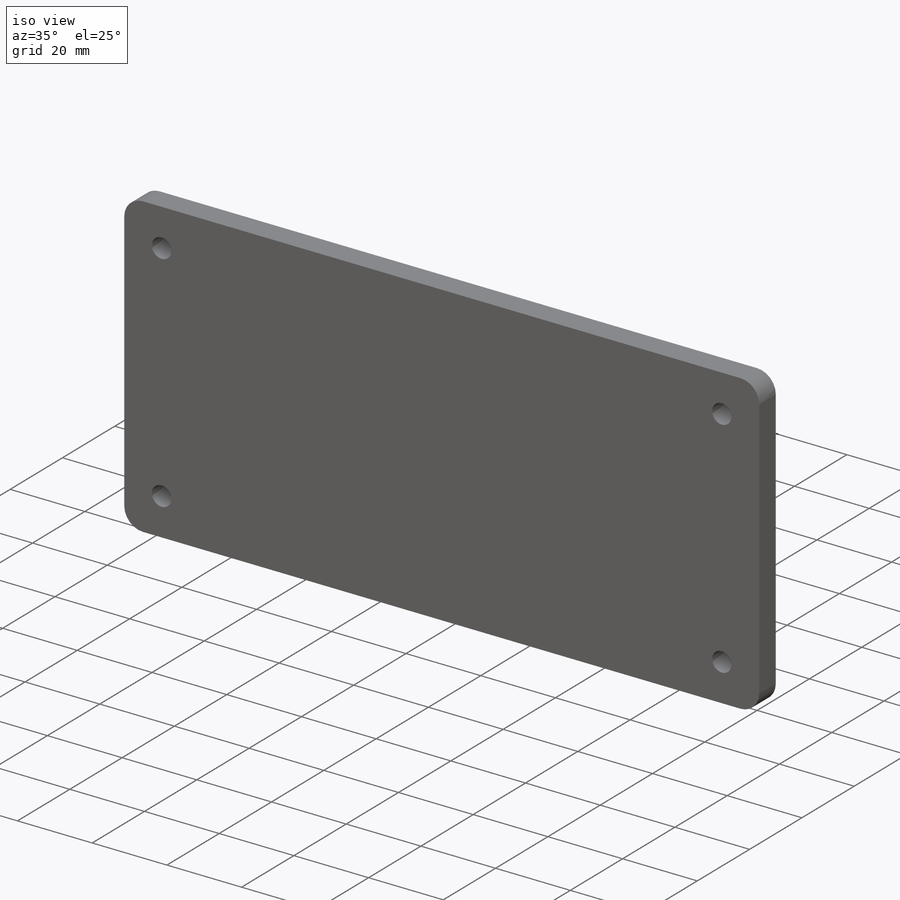
[diagram: iso view]
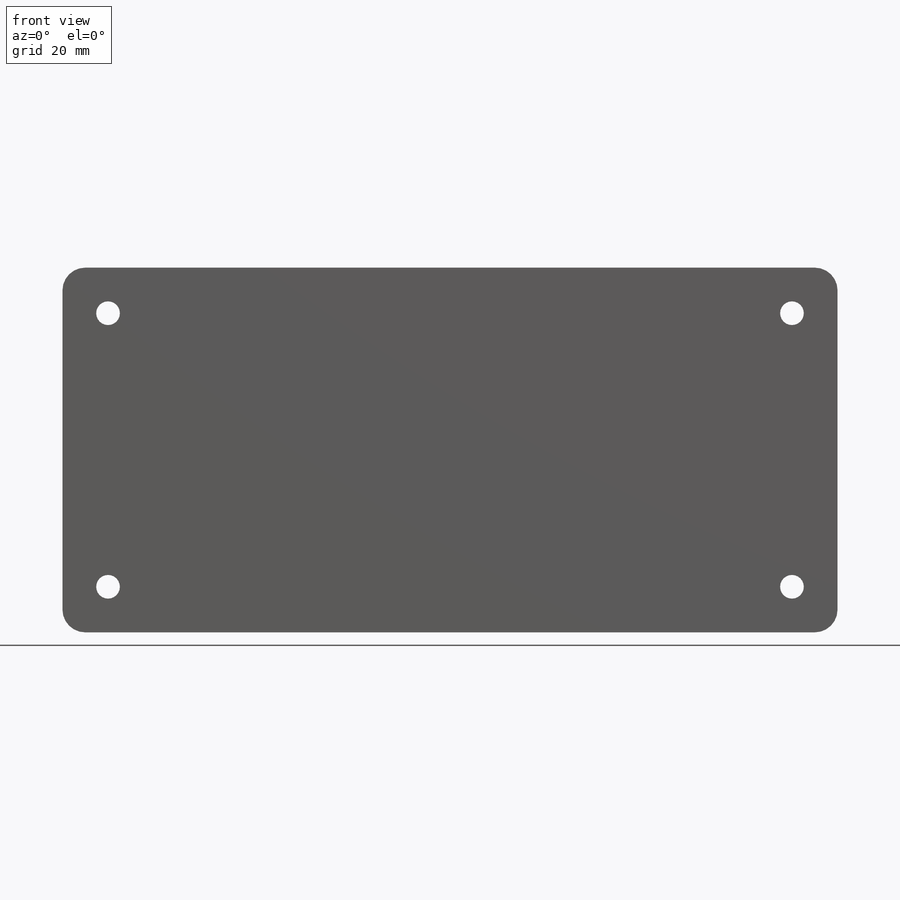
[diagram: front view]
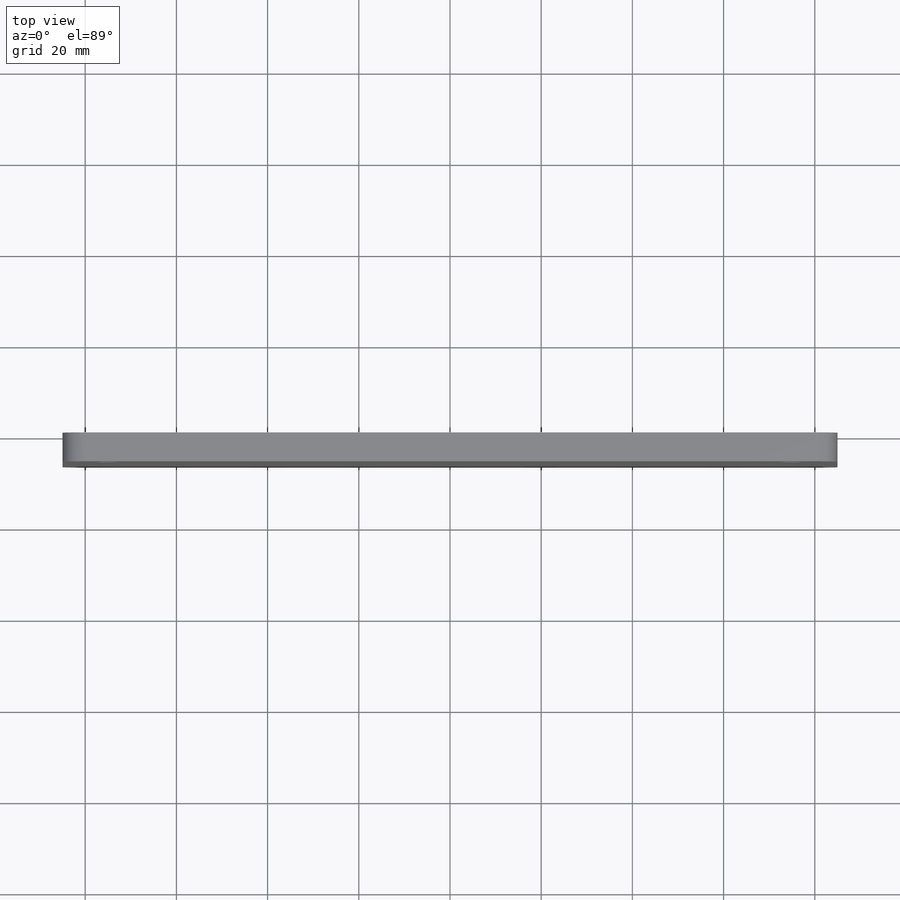
[diagram: top view]
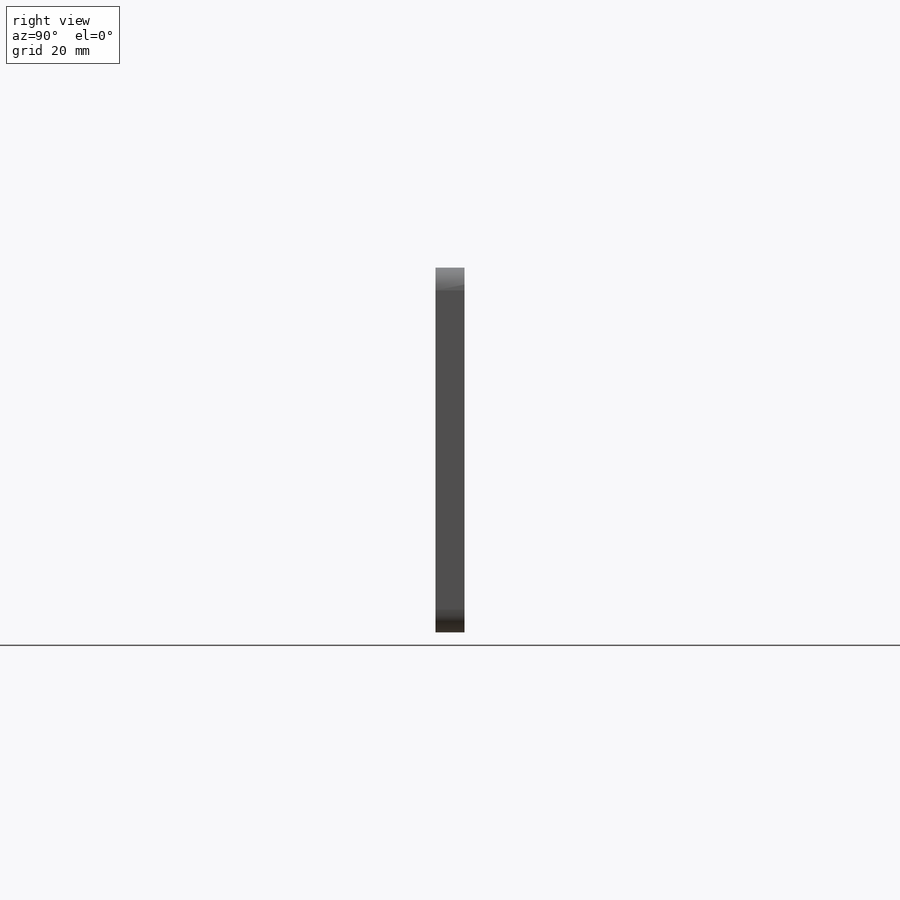
[diagram: right view]
SOLIDWORKS PART (.sldprt)
format: sldprt  version: not decoded by parser v0  size: 1,487,872 bytes
history: native  units: mm
features: sketch x9, hole x3, extrude x2, material x1, chamfer x1 (+13 scaffold rows collapsed)
feature tree (29):
  scaffold x13  (default folders/planes/origin — collapsed)
  material  "Material <not specified>"
  sketch  "Sketch1"  dims[D5=5.2mm D6=5.0mm D1=80.0mm D2=170.0mm D3=10.0mm D4=10.0mm]
  extrude  "Boss-Extrude1"  Depth=6.35mm
  sketch  "Sketch6"
  sketch  "Sketch7"
  extrude  "Block-BBB_reference"  Depth=10mm
  hole  "BBB_mtg_holes"  Diameter=3.4mm Depth=6.35mm
  sketch  "Sketch3"
  sketch  "Sketch2"  dims[hole-wizard template sketch: 55 standard entries collapsed; hole parameters kept: c17.Thru Hole Depth=6.35mm c17.Near C'Sink Dia.=6.3mm c17.D4=~3.666174mm c17.Near C'Sink Angle=90.0deg]
  hole  "Motor_Driver_mtg_holes"  Diameter=1.778mm Depth=6.35mm
  sketch  "Sketch5"
  sketch  "Sketch4"  dims[hole-wizard template sketch: 54 standard entries collapsed; hole parameters kept: c17.Thru Hole Dia.=1.778mm c17.Thru Hole Depth=6.35mm c17.Near C'Sink Dia.=3.0226mm c17.D4=~3.666174mm c17.Near C'Sink Angle=100.0deg]
  hole  "Voltage_Converter_mtg_holes"  Diameter=3.4mm Depth=6.35mm
  sketch  "Sketch9"  dims[D1=46.0mm D2=30.0mm]
  sketch  "Sketch8"  dims[hole-wizard template sketch: 55 standard entries collapsed; hole parameters kept: c17.Thru Hole Depth=6.35mm c17.Near C'Sink Dia.=6.3mm c17.D4=~3.666174mm c17.Near C'Sink Angle=90.0deg]
  chamfer  "Chamfer1"  Distance=3mm Angle=45deg
decode coverage: 11 of 15 modeling features carry decoded parameters
note: ~ marks probable driven/reference dimensions
note: suppression state not decoded; provenance and decode notes live in map.json
